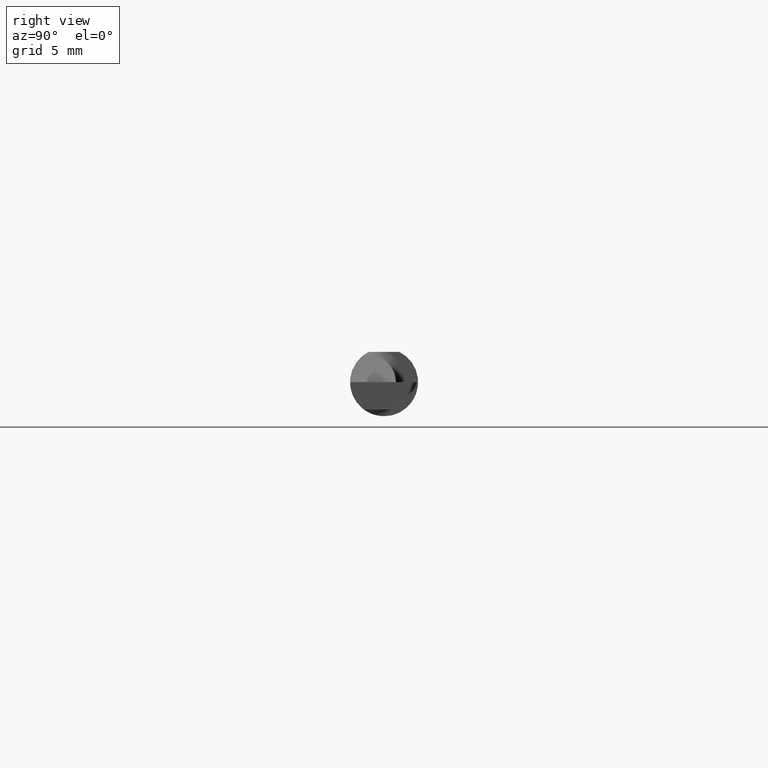
[diagram: clean part render]
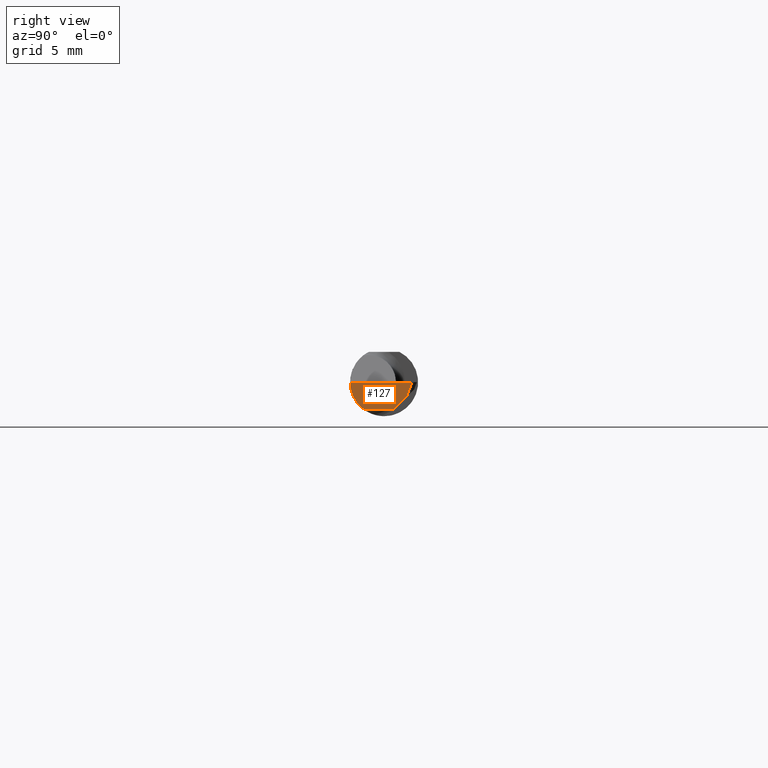
[diagram: same view with one face highlighted and labeled with its STEP entity id]
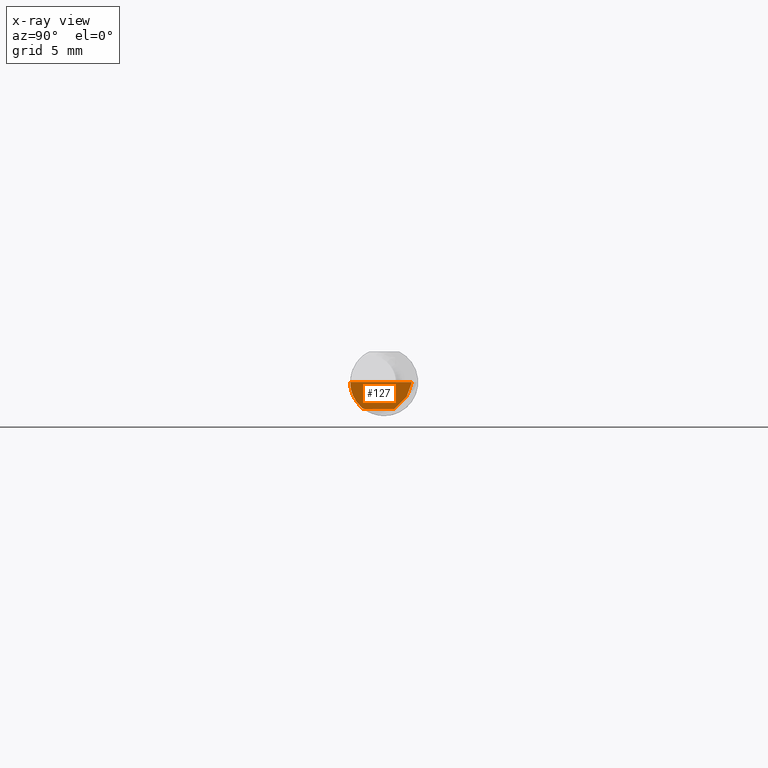
[diagram: x-ray of the same camera — body ghosted, the highlighted face saturated]
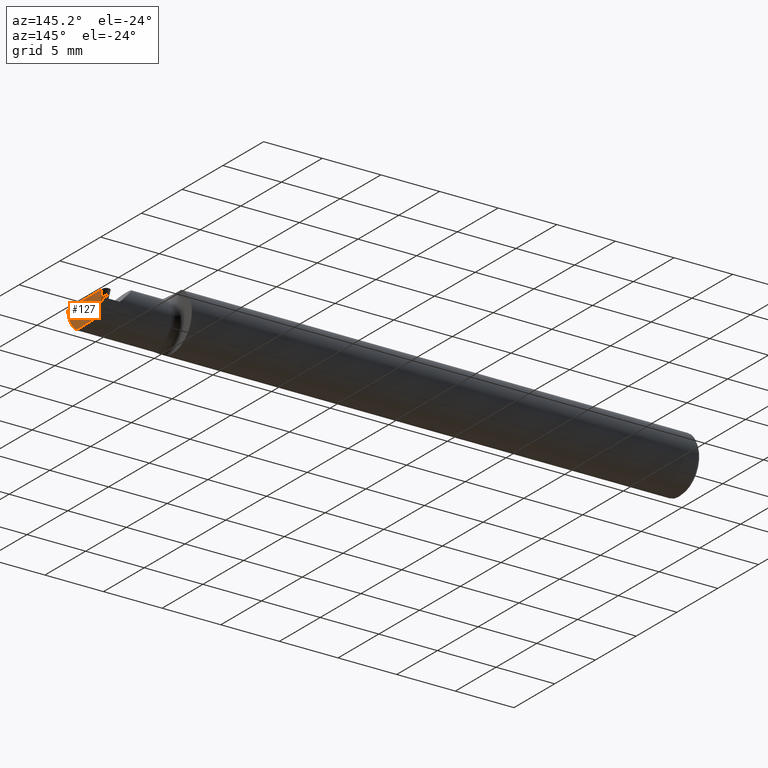
[diagram: same view with one face highlighted and labeled with its STEP entity id]
A machine part, right view. The second image highlights one B-rep face of the part: STEP entity #127.
The next image is the same camera in x-ray: the body ghosted, the highlighted face saturated — about 0% of this face is hidden behind the body in this view.
A second angle (auxiliary view) of the same face is appended — the face is thin or edge-on in the first view.
In plain terms, the highlighted planar face has unit normal (-0.9992, 0.0174, 0.0349).
Its self-contained STEP definition (entity closure, byte-faithful):
#2 = LINE ( 'NONE', #386, #18 ) ;
#18 = VECTOR ( 'NONE', #594, 39.37007874015748854 ) ;
#21 = EDGE_CURVE ( 'NONE', #514, #43, #628, .T. ) ;
#24 = ORIENTED_EDGE ( 'NONE', *, *, #119, .F. ) ;
#30 = VECTOR ( 'NONE', #179, 39.37007874015748143 ) ;
#32 = CARTESIAN_POINT ( 'NONE',  ( 1.998318014211375448, 0.06205680439066463272, -0.04042776115827773770 ) ) ;
#43 = VERTEX_POINT ( 'NONE', #319 ) ;
#46 = CARTESIAN_POINT ( 'NONE',  ( 1.999998056073120534, 0.07741385304294044756, 0.000000000000000000 ) ) ;
#52 = CARTESIAN_POINT ( 'NONE',  ( 1.996507080450274474, 0.02748456554894272708, -0.07500000000000002498 ) ) ;
#53 = VERTEX_POINT ( 'NONE', #203 ) ;
#92 = VERTEX_POINT ( 'NONE', #52 ) ;
#99 = EDGE_CURVE ( 'NONE', #92, #53, #2, .T. ) ;
#114 = CARTESIAN_POINT ( 'NONE',  ( 1.995283749808152374, -0.04259999999999949244, -0.07500000000000002498 ) ) ;
#116 = ORIENTED_EDGE ( 'NONE', *, *, #642, .T. ) ;
#119 = EDGE_CURVE ( 'NONE', #139, #168, #325, .T. ) ;
#127 = ADVANCED_FACE ( 'NONE', ( #326 ), #392, .F. ) ;
#135 = AXIS2_PLACEMENT_3D ( 'NONE', #46, #600, #268 ) ;
#139 = VERTEX_POINT ( 'NONE', #435 ) ;
#153 = CARTESIAN_POINT ( 'NONE',  ( 1.997012998164632958, -0.09360000000000001652, 0.000000000000000000 ) ) ;
#168 = VERTEX_POINT ( 'NONE', #226 ) ;
#179 = DIRECTION ( 'NONE',  ( -0.03701368837992301264, -0.7066222423871552083, -0.7066222423871628688 ) ) ;
#202 = LINE ( 'NONE', #619, #506 ) ;
#203 = CARTESIAN_POINT ( 'NONE',  ( 1.995283749808152374, -0.04259999999999949244, -0.07500000000000002498 ) ) ;
#210 = ORIENTED_EDGE ( 'NONE', *, *, #346, .F. ) ;
#226 = CARTESIAN_POINT ( 'NONE',  ( 1.997012998164632958, -0.09360000000000001652, 0.000000000000000000 ) ) ;
#244 = VECTOR ( 'NONE', #323, 39.37007874015748854 ) ;
#258 = ORIENTED_EDGE ( 'NONE', *, *, #99, .F. ) ;
#267 = CARTESIAN_POINT ( 'NONE',  ( 1.995069675717878299, -0.05810704225352097962, -0.07337936794867837287 ) ) ;
#268 = DIRECTION ( 'NONE',  ( 0.03490480639812536257, 0.000000000000000000, 0.9993906415863165194 ) ) ;
#319 = CARTESIAN_POINT ( 'NONE',  ( 1.999986840374342822, 0.07677130609030106967, 0.000000000000000000 ) ) ;
#323 = DIRECTION ( 'NONE',  ( 0.03876062227022269990, 0.3417631236437463915, 0.9389864650134709390 ) ) ;
#325 =( BOUNDED_CURVE ( )  B_SPLINE_CURVE ( 3, ( #586, #655, #534, #153 ),
 .UNSPECIFIED., .F., .T. ) 
 B_SPLINE_CURVE_WITH_KNOTS ( ( 4, 4 ),
 ( 0.2063001339125765943, 1.107331509589607910 ),
 .UNSPECIFIED. ) 
 CURVE ( )  GEOMETRIC_REPRESENTATION_ITEM ( )  RATIONAL_B_SPLINE_CURVE ( ( 1.000000000000000000, 0.9334817841311872089, 0.9334817841311872089, 1.000000000000000000 ) ) 
 REPRESENTATION_ITEM ( '' )  );
#326 = FACE_OUTER_BOUND ( 'NONE', #634, .T. ) ;
#346 = EDGE_CURVE ( 'NONE', #514, #92, #496, .T. ) ;
#386 = CARTESIAN_POINT ( 'NONE',  ( 1.995320483157157598, -0.04049554784491198739, -0.07500000000000002498 ) ) ;
#389 = CARTESIAN_POINT ( 'NONE',  ( 1.995121087504817758, -0.05300374992736033020, -0.07445783144524582842 ) ) ;
#392 = PLANE ( 'NONE',  #135 ) ;
#435 = CARTESIAN_POINT ( 'NONE',  ( 1.995069675717878299, -0.05810704225352097962, -0.07337936794867837287 ) ) ;
#479 = ORIENTED_EDGE ( 'NONE', *, *, #21, .T. ) ;
#496 = LINE ( 'NONE', #608, #30 ) ;
#506 = VECTOR ( 'NONE', #680, 39.37007874015747433 ) ;
#514 = VERTEX_POINT ( 'NONE', #32 ) ;
#534 = CARTESIAN_POINT ( 'NONE',  ( 1.995996405735428691, -0.09360000000000001652, -0.02910696448121684321 ) ) ;
#554 =( BOUNDED_CURVE ( )  B_SPLINE_CURVE ( 3, ( #267, #389, #690, #114 ),
 .UNSPECIFIED., .F., .T. ) 
 B_SPLINE_CURVE_WITH_KNOTS ( ( 4, 4 ),
 ( 0.2552020043920386616, 0.4634648172053001391 ),
 .UNSPECIFIED. ) 
 CURVE ( )  GEOMETRIC_REPRESENTATION_ITEM ( )  RATIONAL_B_SPLINE_CURVE ( ( 1.000000000000000000, 0.9963888149483992596, 0.9963888149483992596, 1.000000000000000000 ) ) 
 REPRESENTATION_ITEM ( '' )  );
#574 = ORIENTED_EDGE ( 'NONE', *, *, #696, .T. ) ;
#578 = CARTESIAN_POINT ( 'NONE',  ( 1.999995369012866231, 0.07684650545427940127, 0.0002066085544878474808 ) ) ;
#586 = CARTESIAN_POINT ( 'NONE',  ( 1.995069675717878299, -0.05810704225352097962, -0.07337936794867837287 ) ) ;
#594 = DIRECTION ( 'NONE',  ( -0.01745240643727441823, -0.9998476951563912696, 0.000000000000000000 ) ) ;
#600 = DIRECTION ( 'NONE',  ( -0.9992386149554827179, 0.01744177490282107154, 0.03489949670250104552 ) ) ;
#608 = CARTESIAN_POINT ( 'NONE',  ( 1.996701111497402481, 0.03118878038446752654, -0.07129578516447518388 ) ) ;
#619 = CARTESIAN_POINT ( 'NONE',  ( 1.999998056073120534, 0.07741385304294044756, 0.000000000000000000 ) ) ;
#628 = LINE ( 'NONE', #578, #244 ) ;
#634 = EDGE_LOOP ( 'NONE', ( #210, #479, #116, #24, #574, #258 ) ) ;
#642 = EDGE_CURVE ( 'NONE', #43, #168, #202, .T. ) ;
#655 = CARTESIAN_POINT ( 'NONE',  ( 1.995302472377617153, -0.08092595952420823802, -0.05530971394246255585 ) ) ;
#680 = DIRECTION ( 'NONE',  ( -0.01745240643727442170, -0.9998476951563914916, 0.000000000000000000 ) ) ;
#690 = CARTESIAN_POINT ( 'NONE',  ( 1.995192704155888785, -0.04781600192481490208, -0.07500000000000012212 ) ) ;
#696 = EDGE_CURVE ( 'NONE', #139, #53, #554, .T. ) ;